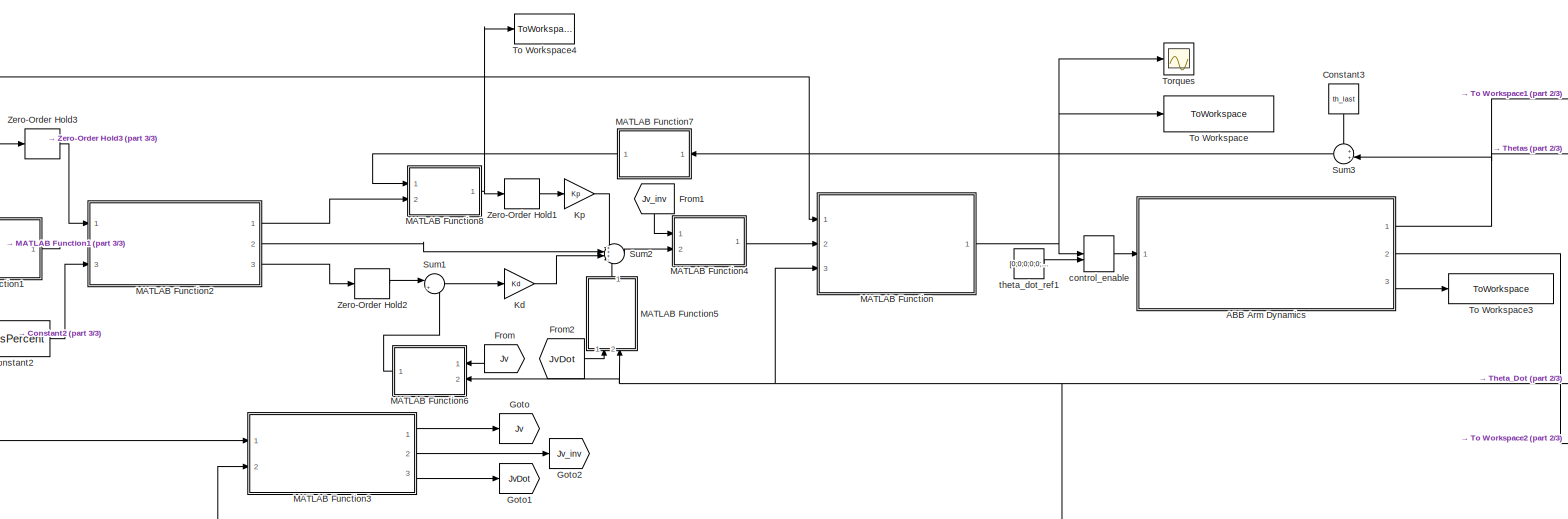
[diagram: root canvas - part 1/3, most of the canvas]
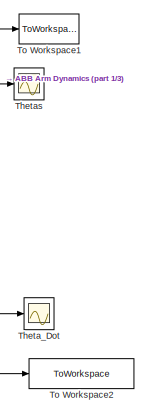
[diagram: root canvas - part 2/3, middle right region]
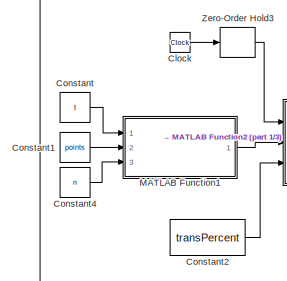
[diagram: root canvas - part 3/3, middle left region]
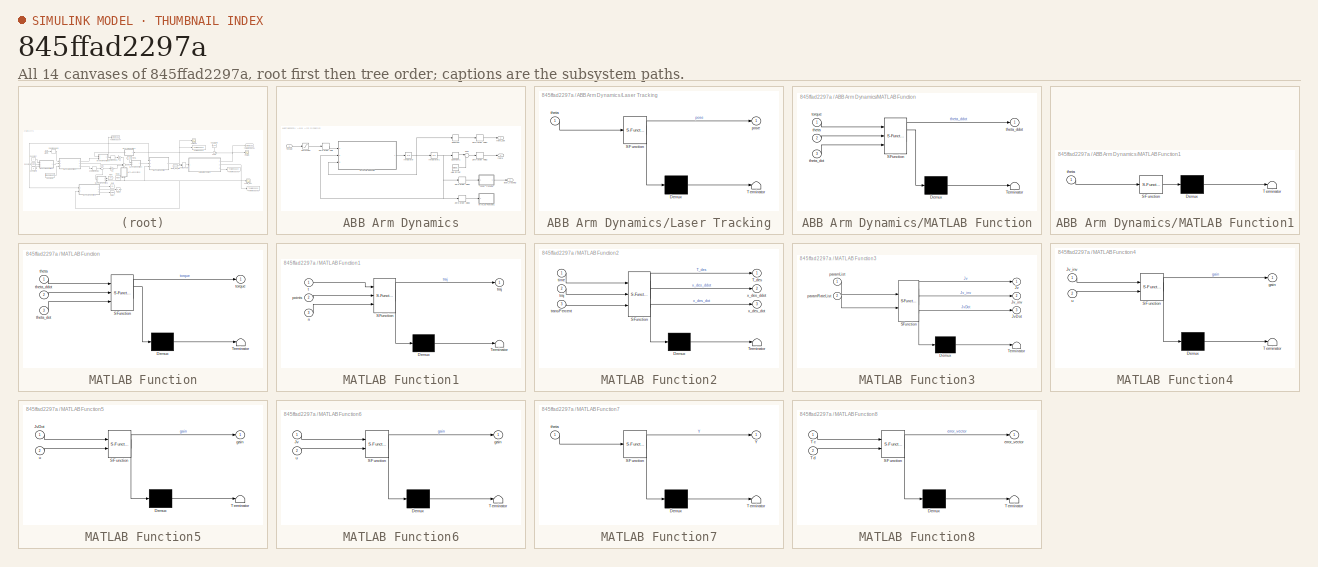
[diagram: thumbnail index - all 14 canvases of the model, root first then tree order]
MODEL slx_845ffad2297a
KIND model
CONFIG AbsTol = auto
CONFIG EnableMultiTasking = on
CONFIG FixedStep = .001
CONFIG MaxStep = .001
CONFIG MinStep = auto
CONFIG RelTol = 1e-6
CONFIG SampleTimeConstraint = Unconstrained
CONFIG Solver = VariableStepAuto
CONFIG SolverName = VariableStepAuto
CONFIG StartTime = 0.0
CONFIG StopTime = 10
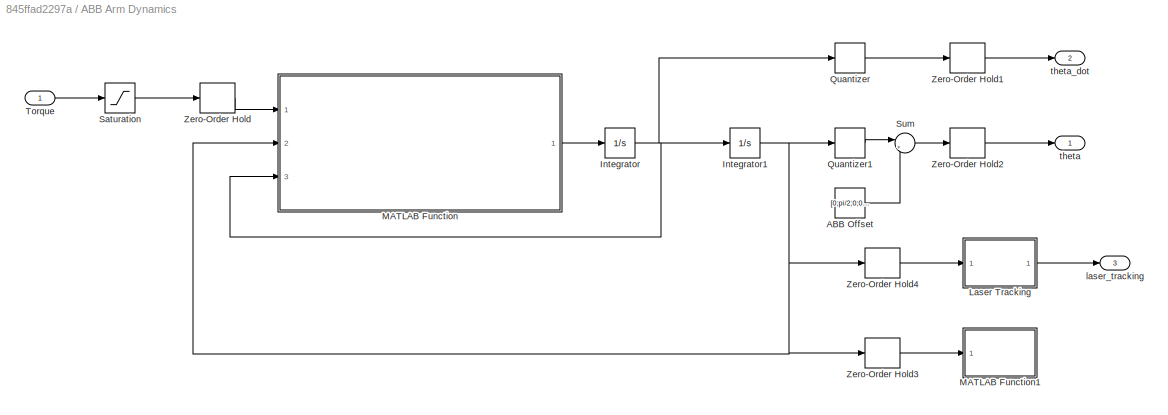
BLOCK [SubSystem] ABB Arm Dynamics
  Ports = [1, 3]
  RequestExecContextInheritance = off
BLOCK [Constant] ABB Arm Dynamics/ABB Offset
  Value = [0;pi/2;0;0;0;0]
BLOCK [Integrator] ABB Arm Dynamics/Integrator
  InitialCondition = zeros(6,1)
  Ports = [1, 1]
BLOCK [Integrator] ABB Arm Dynamics/Integrator1
  InitialCondition = zeros(6,1)
  Ports = [1, 1]
BLOCK [SubSystem] ABB Arm Dynamics/Laser Tracking
  ErrorFcn = Stateflow.Translate.translate
  PermitHierarchicalResolution = ExplicitOnly
  Ports = [1, 1]
  RequestExecContextInheritance = off
  SFBlockType = MATLAB Function
  TreatAsAtomicUnit = on
BLOCK [Demux] ABB Arm Dynamics/Laser Tracking/ Demux 
  Outputs = 1
  Ports = [1, 1]
BLOCK [S-Function] ABB Arm Dynamics/Laser Tracking/ SFunction 
  EnableBusSupport = on
  FunctionName = sf_sfun
  PortCounts = [1 2]
  Ports = [1, 2]
  SFcnIsStateOwnerBlock = off
  SFunctionDeploymentMode = off
  Tag = Stateflow S-Function Project3_System_partB_R2017a 4
BLOCK [Terminator] ABB Arm Dynamics/Laser Tracking/ Terminator 
BLOCK [Outport] ABB Arm Dynamics/Laser Tracking/pose
  IconDisplay = Port number
BLOCK [Inport] ABB Arm Dynamics/Laser Tracking/theta
  IconDisplay = Port number
BLOCK [SubSystem] ABB Arm Dynamics/MATLAB Function
  ErrorFcn = Stateflow.Translate.translate
  PermitHierarchicalResolution = ExplicitOnly
  Ports = [3, 1]
  RequestExecContextInheritance = off
  SFBlockType = MATLAB Function
  TreatAsAtomicUnit = on
BLOCK [Demux] ABB Arm Dynamics/MATLAB Function/ Demux 
  Outputs = 1
  Ports = [1, 1]
BLOCK [S-Function] ABB Arm Dynamics/MATLAB Function/ SFunction 
  EnableBusSupport = on
  FunctionName = sf_sfun
  PortCounts = [3 2]
  Ports = [3, 2]
  SFcnIsStateOwnerBlock = off
  SFunctionDeploymentMode = off
  Tag = Stateflow S-Function Project3_System_partB_R2017a 2
BLOCK [Terminator] ABB Arm Dynamics/MATLAB Function/ Terminator 
BLOCK [Inport] ABB Arm Dynamics/MATLAB Function/theta
  IconDisplay = Port number
  Port = 2
BLOCK [Outport] ABB Arm Dynamics/MATLAB Function/theta_ddot
  IconDisplay = Port number
BLOCK [Inport] ABB Arm Dynamics/MATLAB Function/theta_dot
  IconDisplay = Port number
  Port = 3
BLOCK [Inport] ABB Arm Dynamics/MATLAB Function/torque
  IconDisplay = Port number
BLOCK [SubSystem] ABB Arm Dynamics/MATLAB Function1
  ErrorFcn = Stateflow.Translate.translate
  PermitHierarchicalResolution = ExplicitOnly
  Ports = [1]
  RequestExecContextInheritance = off
  SFBlockType = MATLAB Function
  TreatAsAtomicUnit = on
BLOCK [Demux] ABB Arm Dynamics/MATLAB Function1/ Demux 
  Outputs = 1
  Ports = [1, 1]
BLOCK [S-Function] ABB Arm Dynamics/MATLAB Function1/ SFunction 
  EnableBusSupport = on
  FunctionName = sf_sfun
  PortCounts = [1 1]
  Ports = [1, 1]
  SFcnIsStateOwnerBlock = off
  SFunctionDeploymentMode = off
  Tag = Stateflow S-Function Project3_System_partB_R2017a 1
BLOCK [Terminator] ABB Arm Dynamics/MATLAB Function1/ Terminator 
BLOCK [Inport] ABB Arm Dynamics/MATLAB Function1/theta
  IconDisplay = Port number
BLOCK [Quantizer] ABB Arm Dynamics/Quantizer
  QuantizationInterval = 1/2^32
BLOCK [Quantizer] ABB Arm Dynamics/Quantizer1
  QuantizationInterval = 1/2^32
BLOCK [Saturate] ABB Arm Dynamics/Saturation
  InputPortMap = u0
  LowerLimit = -350
  Ports = [1, 1]
  UpperLimit = 350
BLOCK [Sum] ABB Arm Dynamics/Sum
  IconShape = round
  InputSameDT = off
  Inputs = |++
  OutDataTypeStr = Inherit: Inherit via internal rule
  Ports = [2, 1]
  SaturateOnIntegerOverflow = off
BLOCK [Inport] ABB Arm Dynamics/Torque
  IconDisplay = Port number
BLOCK [ZeroOrderHold] ABB Arm Dynamics/Zero-Order Hold
  SampleTime = 0.001
BLOCK [ZeroOrderHold] ABB Arm Dynamics/Zero-Order Hold1
  SampleTime = 0.001
BLOCK [ZeroOrderHold] ABB Arm Dynamics/Zero-Order Hold2
  SampleTime = 0.001
BLOCK [ZeroOrderHold] ABB Arm Dynamics/Zero-Order Hold3
  SampleTime = .05
BLOCK [ZeroOrderHold] ABB Arm Dynamics/Zero-Order Hold4
  SampleTime = 0.001
BLOCK [Outport] ABB Arm Dynamics/laser_tracking
  IconDisplay = Port number
  Port = 3
BLOCK [Outport] ABB Arm Dynamics/theta
  IconDisplay = Port number
BLOCK [Outport] ABB Arm Dynamics/theta_dot
  IconDisplay = Port number
  Port = 2
BLOCK [Clock] Clock
BLOCK [Constant] Constant
  Value = t
BLOCK [Constant] Constant1
  Value = points
BLOCK [Constant] Constant2
  Value = transPercent
BLOCK [Constant] Constant3
  Value = th_last
BLOCK [Constant] Constant4
  Value = n
BLOCK [From] From
  GotoTag = Jv
BLOCK [From] From1
  GotoTag = Jv_inv
BLOCK [From] From2
  GotoTag = JvDot
BLOCK [Goto] Goto
  GotoTag = Jv
BLOCK [Goto] Goto1
  GotoTag = JvDot
BLOCK [Goto] Goto2
  GotoTag = Jv_inv
BLOCK [Gain] Kd
  Gain = Kd
  OutDataTypeStr = Inherit: Inherit via internal rule
  ParamDataTypeStr = Inherit: Inherit via internal rule
  SaturateOnIntegerOverflow = off
BLOCK [Gain] Kp
  Gain = Kp
  OutDataTypeStr = Inherit: Inherit via internal rule
  ParamDataTypeStr = Inherit: Inherit via internal rule
  SaturateOnIntegerOverflow = off
BLOCK [SubSystem] MATLAB Function
  ErrorFcn = Stateflow.Translate.translate
  PermitHierarchicalResolution = ExplicitOnly
  Ports = [3, 1]
  RequestExecContextInheritance = off
  SFBlockType = MATLAB Function
  TreatAsAtomicUnit = on
BLOCK [Demux] MATLAB Function/ Demux 
  Outputs = 1
  Ports = [1, 1]
BLOCK [S-Function] MATLAB Function/ SFunction 
  EnableBusSupport = on
  FunctionName = sf_sfun
  PortCounts = [3 2]
  Ports = [3, 2]
  SFcnIsStateOwnerBlock = off
  SFunctionDeploymentMode = off
  Tag = Stateflow S-Function Project3_System_partB_R2017a 3
BLOCK [Terminator] MATLAB Function/ Terminator 
BLOCK [Inport] MATLAB Function/theta
  IconDisplay = Port number
BLOCK [Inport] MATLAB Function/theta_ddot
  IconDisplay = Port number
  Port = 2
BLOCK [Inport] MATLAB Function/theta_dot
  IconDisplay = Port number
  Port = 3
BLOCK [Outport] MATLAB Function/torque
  IconDisplay = Port number
BLOCK [SubSystem] MATLAB Function1
  ErrorFcn = Stateflow.Translate.translate
  PermitHierarchicalResolution = ExplicitOnly
  Ports = [3, 1]
  RequestExecContextInheritance = off
  SFBlockType = MATLAB Function
  TreatAsAtomicUnit = on
BLOCK [Demux] MATLAB Function1/ Demux 
  Outputs = 1
  Ports = [1, 1]
BLOCK [S-Function] MATLAB Function1/ SFunction 
  EnableBusSupport = on
  FunctionName = sf_sfun
  PortCounts = [3 2]
  Ports = [3, 2]
  SFcnIsStateOwnerBlock = off
  SFunctionDeploymentMode = off
  Tag = Stateflow S-Function Project3_System_partB_R2017a 5
BLOCK [Terminator] MATLAB Function1/ Terminator 
BLOCK [Inport] MATLAB Function1/n
  IconDisplay = Port number
  Port = 3
BLOCK [Inport] MATLAB Function1/points
  IconDisplay = Port number
  Port = 2
BLOCK [Inport] MATLAB Function1/t
  IconDisplay = Port number
BLOCK [Outport] MATLAB Function1/traj
  IconDisplay = Port number
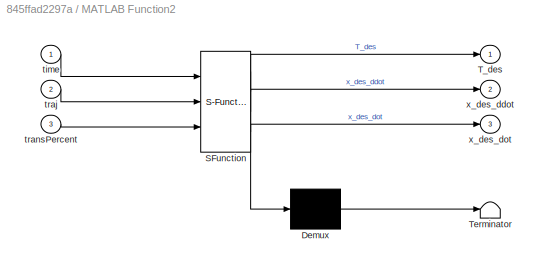
BLOCK [SubSystem] MATLAB Function2
  ErrorFcn = Stateflow.Translate.translate
  PermitHierarchicalResolution = ExplicitOnly
  Ports = [3, 3]
  RequestExecContextInheritance = off
  SFBlockType = MATLAB Function
  TreatAsAtomicUnit = on
BLOCK [Demux] MATLAB Function2/ Demux 
  Outputs = 1
  Ports = [1, 1]
BLOCK [S-Function] MATLAB Function2/ SFunction 
  EnableBusSupport = on
  FunctionName = sf_sfun
  PortCounts = [3 4]
  Ports = [3, 4]
  SFcnIsStateOwnerBlock = off
  SFunctionDeploymentMode = off
  Tag = Stateflow S-Function Project3_System_partB_R2017a 6
BLOCK [Terminator] MATLAB Function2/ Terminator 
BLOCK [Outport] MATLAB Function2/T_des
  IconDisplay = Port number
BLOCK [Inport] MATLAB Function2/time
  IconDisplay = Port number
BLOCK [Inport] MATLAB Function2/traj
  IconDisplay = Port number
  Port = 2
BLOCK [Inport] MATLAB Function2/transPercent
  IconDisplay = Port number
  Port = 3
BLOCK [Outport] MATLAB Function2/x_des_ddot
  IconDisplay = Port number
  Port = 2
BLOCK [Outport] MATLAB Function2/x_des_dot
  IconDisplay = Port number
  Port = 3
BLOCK [SubSystem] MATLAB Function3
  ErrorFcn = Stateflow.Translate.translate
  PermitHierarchicalResolution = ExplicitOnly
  Ports = [2, 3]
  RequestExecContextInheritance = off
  SFBlockType = MATLAB Function
  TreatAsAtomicUnit = on
BLOCK [Demux] MATLAB Function3/ Demux 
  Outputs = 1
  Ports = [1, 1]
BLOCK [S-Function] MATLAB Function3/ SFunction 
  EnableBusSupport = on
  FunctionName = sf_sfun
  PortCounts = [2 4]
  Ports = [2, 4]
  SFcnIsStateOwnerBlock = off
  SFunctionDeploymentMode = off
  Tag = Stateflow S-Function Project3_System_partB_R2017a 7
BLOCK [Terminator] MATLAB Function3/ Terminator 
BLOCK [Outport] MATLAB Function3/Jv
  IconDisplay = Port number
BLOCK [Outport] MATLAB Function3/JvDot
  IconDisplay = Port number
  Port = 3
BLOCK [Outport] MATLAB Function3/Jv_inv
  IconDisplay = Port number
  Port = 2
BLOCK [Inport] MATLAB Function3/paramList
  IconDisplay = Port number
BLOCK [Inport] MATLAB Function3/paramRateList
  IconDisplay = Port number
  Port = 2
BLOCK [SubSystem] MATLAB Function4
  ErrorFcn = Stateflow.Translate.translate
  PermitHierarchicalResolution = ExplicitOnly
  Ports = [2, 1]
  RequestExecContextInheritance = off
  SFBlockType = MATLAB Function
  TreatAsAtomicUnit = on
BLOCK [Demux] MATLAB Function4/ Demux 
  Outputs = 1
  Ports = [1, 1]
BLOCK [S-Function] MATLAB Function4/ SFunction 
  EnableBusSupport = on
  FunctionName = sf_sfun
  PortCounts = [2 2]
  Ports = [2, 2]
  SFcnIsStateOwnerBlock = off
  SFunctionDeploymentMode = off
  Tag = Stateflow S-Function Project3_System_partB_R2017a 8
BLOCK [Terminator] MATLAB Function4/ Terminator 
BLOCK [Inport] MATLAB Function4/Jv_inv
  IconDisplay = Port number
BLOCK [Outport] MATLAB Function4/gain
  IconDisplay = Port number
BLOCK [Inport] MATLAB Function4/u
  IconDisplay = Port number
  Port = 2
BLOCK [SubSystem] MATLAB Function5
  ErrorFcn = Stateflow.Translate.translate
  PermitHierarchicalResolution = ExplicitOnly
  Ports = [2, 1]
  RequestExecContextInheritance = off
  SFBlockType = MATLAB Function
  TreatAsAtomicUnit = on
BLOCK [Demux] MATLAB Function5/ Demux 
  Outputs = 1
  Ports = [1, 1]
BLOCK [S-Function] MATLAB Function5/ SFunction 
  EnableBusSupport = on
  FunctionName = sf_sfun
  PortCounts = [2 2]
  Ports = [2, 2]
  SFcnIsStateOwnerBlock = off
  SFunctionDeploymentMode = off
  Tag = Stateflow S-Function Project3_System_partB_R2017a 9
BLOCK [Terminator] MATLAB Function5/ Terminator 
BLOCK [Inport] MATLAB Function5/JvDot
  IconDisplay = Port number
BLOCK [Outport] MATLAB Function5/gain
  IconDisplay = Port number
BLOCK [Inport] MATLAB Function5/u
  IconDisplay = Port number
  Port = 2
BLOCK [SubSystem] MATLAB Function6
  ErrorFcn = Stateflow.Translate.translate
  PermitHierarchicalResolution = ExplicitOnly
  Ports = [2, 1]
  RequestExecContextInheritance = off
  SFBlockType = MATLAB Function
  TreatAsAtomicUnit = on
BLOCK [Demux] MATLAB Function6/ Demux 
  Outputs = 1
  Ports = [1, 1]
BLOCK [S-Function] MATLAB Function6/ SFunction 
  EnableBusSupport = on
  FunctionName = sf_sfun
  PortCounts = [2 2]
  Ports = [2, 2]
  SFcnIsStateOwnerBlock = off
  SFunctionDeploymentMode = off
  Tag = Stateflow S-Function Project3_System_partB_R2017a 10
BLOCK [Terminator] MATLAB Function6/ Terminator 
BLOCK [Inport] MATLAB Function6/Jv
  IconDisplay = Port number
BLOCK [Outport] MATLAB Function6/gain
  IconDisplay = Port number
BLOCK [Inport] MATLAB Function6/u
  IconDisplay = Port number
  Port = 2
BLOCK [SubSystem] MATLAB Function7
  ErrorFcn = Stateflow.Translate.translate
  PermitHierarchicalResolution = ExplicitOnly
  Ports = [1, 1]
  RequestExecContextInheritance = off
  SFBlockType = MATLAB Function
  TreatAsAtomicUnit = on
BLOCK [Demux] MATLAB Function7/ Demux 
  Outputs = 1
  Ports = [1, 1]
BLOCK [S-Function] MATLAB Function7/ SFunction 
  EnableBusSupport = on
  FunctionName = sf_sfun
  PortCounts = [1 2]
  Ports = [1, 2]
  SFcnIsStateOwnerBlock = off
  SFunctionDeploymentMode = off
  Tag = Stateflow S-Function Project3_System_partB_R2017a 11
BLOCK [Terminator] MATLAB Function7/ Terminator 
BLOCK [Outport] MATLAB Function7/Y
  IconDisplay = Port number
BLOCK [Inport] MATLAB Function7/theta
  IconDisplay = Port number
BLOCK [SubSystem] MATLAB Function8
  ErrorFcn = Stateflow.Translate.translate
  PermitHierarchicalResolution = ExplicitOnly
  Ports = [2, 1]
  RequestExecContextInheritance = off
  SFBlockType = MATLAB Function
  TreatAsAtomicUnit = on
BLOCK [Demux] MATLAB Function8/ Demux 
  Outputs = 1
  Ports = [1, 1]
BLOCK [S-Function] MATLAB Function8/ SFunction 
  EnableBusSupport = on
  FunctionName = sf_sfun
  PortCounts = [2 2]
  Ports = [2, 2]
  SFcnIsStateOwnerBlock = off
  SFunctionDeploymentMode = off
  Tag = Stateflow S-Function Project3_System_partB_R2017a 12
BLOCK [Terminator] MATLAB Function8/ Terminator 
BLOCK [Inport] MATLAB Function8/Tc
  IconDisplay = Port number
BLOCK [Inport] MATLAB Function8/Td
  IconDisplay = Port number
  Port = 2
BLOCK [Outport] MATLAB Function8/error_vector
  IconDisplay = Port number
BLOCK [Sum] Sum1
  IconShape = round
  InputSameDT = off
  Inputs = |+-
  OutDataTypeStr = Inherit: Inherit via internal rule
  Ports = [2, 1]
  SaturateOnIntegerOverflow = off
BLOCK [Sum] Sum2
  IconShape = round
  InputSameDT = off
  Inputs = +++-
  OutDataTypeStr = Inherit: Inherit via internal rule
  Ports = [4, 1]
  SaturateOnIntegerOverflow = off
BLOCK [Sum] Sum3
  IconShape = round
  InputSameDT = off
  Inputs = ++|
  OutDataTypeStr = Inherit: Inherit via internal rule
  Ports = [2, 1]
  SaturateOnIntegerOverflow = off
BLOCK [Scope] Theta_Dot
  Floating = off
  NumInputPorts = 1
  Ports = [1]
  ScopeSpecificationString = Simulink.scopes.TimeScopeBlockCfg('CurrentConfiguration', extmgr.ConfigurationSet(extmgr.Configuration('Core','General UI',true),extmgr.Configuration('Core','Source UI',true),extmgr.Configuration('Sources','WiredSimulink',true,'DataLoggingVariableName','ScopeData1'),extmgr.Configuration('Visuals','Time Domain',true,'SerializedDisplays',{struct('MinYLimReal','-5.51584','MaxYLimReal','1.67824','YLab...<+1568ch>
BLOCK [Scope] Thetas
  Floating = off
  NumInputPorts = 1
  Ports = [1]
  ScopeSpecificationString = Simulink.scopes.TimeScopeBlockCfg('CurrentConfiguration', extmgr.ConfigurationSet(extmgr.Configuration('Core','General UI',true),extmgr.Configuration('Core','Source UI',true),extmgr.Configuration('Sources','WiredSimulink',true),extmgr.Configuration('Visuals','Time Domain',true,'SerializedDisplays',{struct('MinYLimReal','-2.19854','MaxYLimReal','4.54615','YLabelReal','','MinYLimMag','0.00000','MaxY...<+1529ch>
BLOCK [ToWorkspace] To Workspace
  FixptAsFi = on
  MaxDataPoints = inf
  Ports = [1]
  SampleTime = -1
  Save2DSignal = 3-D array (concatenate along third dimension)
  SaveFormat = Structure With Time
  VariableName = control_torque
BLOCK [ToWorkspace] To Workspace1
  FixptAsFi = on
  MaxDataPoints = inf
  Ports = [1]
  SampleTime = -1
  Save2DSignal = 3-D array (concatenate along third dimension)
  SaveFormat = Structure With Time
  VariableName = theta_actual
BLOCK [ToWorkspace] To Workspace2
  FixptAsFi = on
  MaxDataPoints = inf
  Ports = [1]
  SampleTime = -1
  Save2DSignal = 3-D array (concatenate along third dimension)
  SaveFormat = Structure With Time
  VariableName = theta_dot_actual
BLOCK [ToWorkspace] To Workspace3
  FixptAsFi = on
  MaxDataPoints = inf
  Ports = [1]
  SampleTime = -1
  Save2DSignal = 3-D array (concatenate along third dimension)
  SaveFormat = Structure With Time
  VariableName = laser_tracking
BLOCK [ToWorkspace] To Workspace4
  FixptAsFi = on
  MaxDataPoints = inf
  Ports = [1]
  SampleTime = -1
  Save2DSignal = 3-D array (concatenate along third dimension)
  SaveFormat = Structure With Time
  VariableName = trans_error
BLOCK [Scope] Torques
  Floating = off
  NumInputPorts = 1
  Ports = [1]
  ScopeSpecificationString = Simulink.scopes.TimeScopeBlockCfg('CurrentConfiguration', extmgr.ConfigurationSet(extmgr.Configuration('Core','General UI',true),extmgr.Configuration('Core','Source UI',true),extmgr.Configuration('Sources','WiredSimulink',true,'DataLoggingVariableName','ScopeData1'),extmgr.Configuration('Visuals','Time Domain',true,'SerializedDisplays',{struct('MinYLimReal','-206.1215','MaxYLimReal','508.67229','Y...<+1536ch>
BLOCK [ZeroOrderHold] Zero-Order Hold1
  SampleTime = 0.001
BLOCK [ZeroOrderHold] Zero-Order Hold2
  SampleTime = 0.001
BLOCK [ZeroOrderHold] Zero-Order Hold3
  SampleTime = 0.001
BLOCK [ManualSwitch] control_enable
BLOCK [Constant] theta_dot_ref1
  Value = [0;0;0;0;0;0]
LINE ABB Arm Dynamics/ABB Offset:1 -> ABB Arm Dynamics/Sum:2
NET ABB Arm Dynamics/Integrator1:1 -> ABB Arm Dynamics/MATLAB Function:2, ABB Arm Dynamics/Quantizer1:1, ABB Arm Dynamics/Zero-Order Hold3:1, ABB Arm Dynamics/Zero-Order Hold4:1
NET ABB Arm Dynamics/Integrator:1 -> ABB Arm Dynamics/Integrator1:1, ABB Arm Dynamics/MATLAB Function:3, ABB Arm Dynamics/Quantizer:1
LINE ABB Arm Dynamics/Laser Tracking:1 -> ABB Arm Dynamics/laser_tracking:1
LINE ABB Arm Dynamics/MATLAB Function:1 -> ABB Arm Dynamics/Integrator:1
LINE ABB Arm Dynamics/Quantizer1:1 -> ABB Arm Dynamics/Sum:1
LINE ABB Arm Dynamics/Quantizer:1 -> ABB Arm Dynamics/Zero-Order Hold1:1
LINE ABB Arm Dynamics/Saturation:1 -> ABB Arm Dynamics/Zero-Order Hold:1
LINE ABB Arm Dynamics/Sum:1 -> ABB Arm Dynamics/Zero-Order Hold2:1
LINE ABB Arm Dynamics/Torque:1 -> ABB Arm Dynamics/Saturation:1
LINE ABB Arm Dynamics/Zero-Order Hold1:1 -> ABB Arm Dynamics/theta_dot:1
LINE ABB Arm Dynamics/Zero-Order Hold2:1 -> ABB Arm Dynamics/theta:1
LINE ABB Arm Dynamics/Zero-Order Hold3:1 -> ABB Arm Dynamics/MATLAB Function1:1
LINE ABB Arm Dynamics/Zero-Order Hold4:1 -> ABB Arm Dynamics/Laser Tracking:1
LINE ABB Arm Dynamics/Zero-Order Hold:1 -> ABB Arm Dynamics/MATLAB Function:1
NET ABB Arm Dynamics:1 -> Sum3:2, Thetas:1, To Workspace1:1
NET ABB Arm Dynamics:2 -> MATLAB Function3:2, MATLAB Function5:2, MATLAB Function6:2, MATLAB Function:3, Theta_Dot:1, To Workspace2:1
LINE ABB Arm Dynamics:3 -> To Workspace3:1
LINE Clock:1 -> Zero-Order Hold3:1
LINE Constant1:1 -> MATLAB Function1:2
LINE Constant2:1 -> MATLAB Function2:3
LINE Constant3:1 -> Sum3:1
LINE Constant4:1 -> MATLAB Function1:3
LINE Constant:1 -> MATLAB Function1:1
LINE From1:1 -> MATLAB Function4:1
LINE From2:1 -> MATLAB Function5:1
LINE From:1 -> MATLAB Function6:1
LINE Kd:1 -> Sum2:3
LINE Kp:1 -> Sum2:1
LINE MATLAB Function1:1 -> MATLAB Function2:2
LINE MATLAB Function2:1 -> MATLAB Function8:2
LINE MATLAB Function2:2 -> Sum2:2
LINE MATLAB Function2:3 -> Zero-Order Hold2:1
LINE MATLAB Function3:1 -> Goto:1
LINE MATLAB Function3:2 -> Goto2:1
LINE MATLAB Function3:3 -> Goto1:1
LINE MATLAB Function4:1 -> MATLAB Function:2
LINE MATLAB Function5:1 -> Sum2:4
LINE MATLAB Function6:1 -> Sum1:2
LINE MATLAB Function7:1 -> MATLAB Function8:1
NET MATLAB Function8:1 -> To Workspace4:1, Zero-Order Hold1:1
NET MATLAB Function:1 -> To Workspace:1, Torques:1, control_enable:1
LINE Sum1:1 -> Kd:1
LINE Sum2:1 -> MATLAB Function4:2
NET Sum3:1 -> MATLAB Function3:1, MATLAB Function7:1, MATLAB Function:1
LINE Zero-Order Hold1:1 -> Kp:1
LINE Zero-Order Hold2:1 -> Sum1:1
LINE Zero-Order Hold3:1 -> MATLAB Function2:1
LINE control_enable:1 -> ABB Arm Dynamics:1
LINE theta_dot_ref1:1 -> control_enable:2
note: NET lines group one-source signal fan-out (src -> all destinations, sorted); 1:1 wires keep LINE
CHART ABB Arm Dynamics/MATLAB Function1 states=1 transitions=1
  STATE_LABEL 'eML_blk_kernel()'
  STATE_LABEL "SCRIPT:\nfunction drawArm(theta)\n%#codegen\ncoder.extrinsic('evalin');\ncoder.extrinsic('load');\npersistent figNum axisHandel Sim_Exact points3D;\n\nif isempty(Sim_Exact)\n    Sim_Exact = evalin('base','Sim_Exact');\n    a.points3D = zeros(21,3,'double');\n    a = load('points3D.mat');\n    points3D = zeros(21,3,'double');\n    points3D = a.points3D;\nend\n\nth1 = theta(1);\nth2 = theta(2);\nth3 = theta(3);\nth4 ...<+3608ch>"
CHART ABB Arm Dynamics/MATLAB Function states=1 transitions=1
  STATE_LABEL 'eML_blk_kernel()'
  STATE_LABEL "SCRIPT:\nfunction theta_ddot = fcn(torque, theta, theta_dot )\n%#codegen\ncoder.extrinsic('evalin');\npersistent Sim_Exact;\n\nif isempty(Sim_Exact)\n    Sim_Exact = evalin('base','Sim_Exact');\nend\n\nth1 = theta(1);\nth2 = theta(2);\nth3 = theta(3);\nth4 = theta(4);\nth5 = theta(5);\nth6 = theta(6);\n\nth_dot1 = theta_dot(1);\nth_dot2 = theta_dot(2);\nth_dot3 = theta_dot(3);\nth_dot4 = theta_dot(4);\nth_dot5 = theta...<+3608ch>"
CHART MATLAB Function states=1 transitions=1
  STATE_LABEL 'eML_blk_kernel()'
  STATE_LABEL "SCRIPT:\nfunction torque = newton_euler( theta, theta_ddot, theta_dot )\n%#codegen\ncoder.extrinsic('evalin');\ncoder.extrinsic('newtonEuler');\n\npersistent linkList boundry_conditions;\n\nif isempty(linkList)\n    linkList = evalin('base','linkList');\n    boundry_conditions.base_angular_velocity = [0;0;0];\n    boundry_conditions.base_angular_acceleration = [0;0;0];\n    boundry_conditions.base_linear_acce...<+272ch>"
CHART ABB Arm Dynamics/Laser Tracking states=1 transitions=1
  STATE_LABEL 'eML_blk_kernel()'
  STATE_LABEL "SCRIPT:\nfunction pose = laserTracker(theta)\n%#codegen\ncoder.extrinsic('evalin');\npersistent Sim_Exact;\n\nif isempty(Sim_Exact)\n    Sim_Exact = evalin('base','Sim_Exact');\nend\n\n\nth1 = theta(1);\nth2 = theta(2);\nth3 = theta(3);\nth4 = theta(4);\nth5 = theta(5);\nth6 = theta(6);\n\n\nif(Sim_Exact)\n    pose = [ sin(th6)*(cos(th4)*sin(th1) + sin(th4)*(cos(th1)*sin(th2)*sin(th3) - cos(th1)*cos(th2)*cos(th3))) +...<+3608ch>"
CHART MATLAB Function1 states=1 transitions=1
  STATE_LABEL 'eML_blk_kernel()'
  STATE_LABEL 'SCRIPT:\nfunction traj = trajectory(t,points,n)\nd1 = 0.29;\na2 = 0.270;\na3 = 0.070;\nd4 = 0.302;\nd6 = 0.072;\n\nrcom1 = [0;-d1/2;0];\nrcom2 = [-a2/2;0;0];\nrcom3 = [-a3/2;0;0];\nrcom4 = [0;-d4/2;0];\nrcom5 = [0;0;0];\nrcom6 = [0; -d6/2;0];\n\nrad1 = .2/2; h1 = d1;   m1 = 8050*h1*rad1^2*pi;\nrad2 = .15/2; h2 = a2;   m2 = 8050*h2*rad2^2*pi;\nrad3 = .1/2; h3 = a3;  m3 = 8050*h3*rad3^2*pi;\nrad4 = .1/2; h4 = d4;  m4...<+2113ch>'
CHART MATLAB Function2 states=1 transitions=1
  STATE_LABEL 'eML_blk_kernel()'
  STATE_LABEL 'SCRIPT:\nfunction [T_des,x_des_ddot,x_des_dot] = constAccelInterp(time,traj,transPercent)\nt = traj(:,1);\n[n,m] = size(traj);\nx1 = zeros(1,7);\nx1_dot = zeros(1,7);\nx1_ddot = zeros(1,7);\nomega=zeros(3,1);\nomega1=zeros(3,1);\nx_des=zeros(6,1);\nx_dot_des=zeros(6,1);\nq1=zeros(4,1);\nq=zeros(4,1);\n\nfor j = 2:n-1\n    if j-1==1 && time>=t(j-1,1) && time<=(t(j-1,1)+transPercent)\n        for i = 2:m\n          ...<+2582ch>'
CHART MATLAB Function3 states=1 transitions=1
  STATE_LABEL 'eML_blk_kernel()'
  STATE_LABEL 'SCRIPT:\nfunction [Jv,Jv_inv,JvDot] = Jacobian(paramList,paramRateList)\n\nd1 = 0.29;\na2 = 0.270;\na3 = 0.070;\nd4 = 0.302;\nd6 = 0.072;\n\nrcom1 = [0;-d1/2;0];\nrcom2 = [-a2/2;0;0];\nrcom3 = [-a3/2;0;0];\nrcom4 = [0;-d4/2;0];\nrcom5 = [0;0;0];\nrcom6 = [0; -d6/2;0];\n\nrad1 = .2/2; h1 = d1;   m1 = 8050*h1*rad1^2*pi;\nrad2 = .15/2; h2 = a2;   m2 = 8050*h2*rad2^2*pi;\nrad3 = .1/2; h3 = a3;  m3 = 8050*h3*rad3^2*pi;\n...<+1141ch>'
CHART MATLAB Function4 states=1 transitions=1
  STATE_LABEL 'eML_blk_kernel()'
  STATE_LABEL "SCRIPT:\n function gain = Jv_inv(Jv_inv,u)\ngain=zeros(1,6);\ngain1 = Jv_inv*u';\ngain=gain1';\nend\n"
CHART MATLAB Function5 states=1 transitions=1
  STATE_LABEL 'eML_blk_kernel()'
  STATE_LABEL "SCRIPT:\nfunction gain = JvDot(JvDot,u)\ngain=zeros(1,6);\ngain1 = JvDot*u;\ngain=gain1';\nend\n"
CHART MATLAB Function6 states=1 transitions=1
  STATE_LABEL 'eML_blk_kernel()'
  STATE_LABEL "SCRIPT:\nfunction gain = Jv(Jv,u)\ngain=zeros(1,6);\ngain1 = Jv*u;\ngain=gain1';\nend\n"
CHART MATLAB Function7 states=1 transitions=1
  STATE_LABEL 'eML_blk_kernel()'
  STATE_LABEL 'SCRIPT:\nfunction Y = fwdKine(theta)\nd1 = 0.29;\na2 = 0.270;\na3 = 0.070;\nd4 = 0.302;\nd6 = 0.072;\n\nrcom1 = [0;-d1/2;0];\nrcom2 = [-a2/2;0;0];\nrcom3 = [-a3/2;0;0];\nrcom4 = [0;-d4/2;0];\nrcom5 = [0;0;0];\nrcom6 = [0; -d6/2;0];\n\nrad1 = .2/2; h1 = d1;   m1 = 8050*h1*rad1^2*pi;\nrad2 = .15/2; h2 = a2;   m2 = 8050*h2*rad2^2*pi;\nrad3 = .1/2; h3 = a3;  m3 = 8050*h3*rad3^2*pi;\nrad4 = .1/2; h4 = d4;  m4 = 8050*h4*...<+1007ch>'
CHART MATLAB Function8 states=1 transitions=1
  STATE_LABEL 'eML_blk_kernel()'
  STATE_LABEL 'SCRIPT:\nfunction error_vector  = transError(Tc,Td)\nd_Des = Td(1:3,4);\nd_Cur = Tc(1:3,4);\nposition_error = d_Des - d_Cur;\nrot_error = rotationError(Td(1:3,1:3),Tc(1:3,1:3));\nerror_vector = [position_error;rot_error];\nend'
